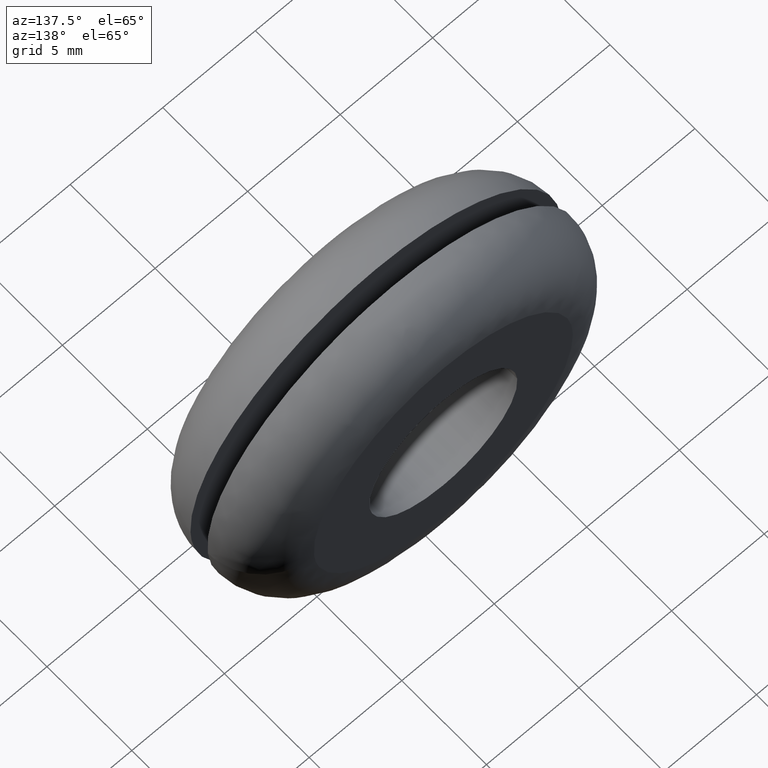
[diagram: clean part render]
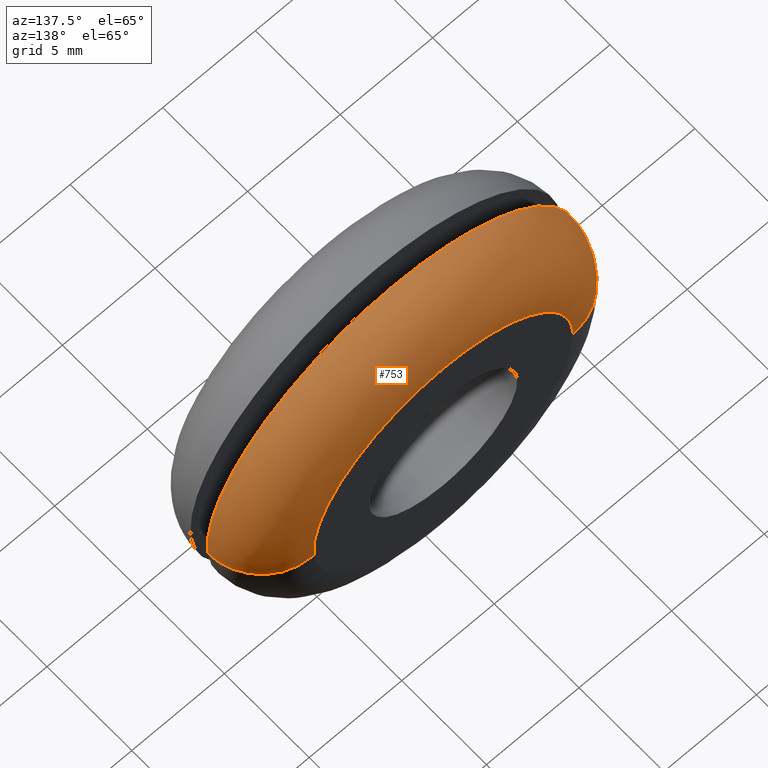
[diagram: same view with one face highlighted and labeled with its STEP entity id]
A machine part, auxiliary view. The second image highlights one B-rep face of the part: STEP entity #753.
In plain terms, the highlighted face is a freeform B-spline surface patch.
Its self-contained STEP definition (entity closure, byte-faithful):
#628=CARTESIAN_POINT('',(6.774856278696406,6.992738098923129,-0.473585243403883));
#629=CARTESIAN_POINT('',(6.788410071817493,6.992738098923129,-0.279691954485990));
#630=CARTESIAN_POINT('',(6.790852488247961,6.992738098923130,-0.085340861364940));
#631=CARTESIAN_POINT('',(6.876193349612899,6.992738098923130,6.705511626883019));
#632=CARTESIAN_POINT('',(0.085340861364941,6.992738098923130,6.790852488247961));
#633=CARTESIAN_POINT('',(-6.705511626883019,6.992738098923130,6.876193349612899));
#634=CARTESIAN_POINT('',(-6.790852488247961,6.992738098923130,0.085340861364941));
#635=CARTESIAN_POINT('',(10.207702002769070,7.232611387236871,-0.713552707055488));
#636=CARTESIAN_POINT('',(10.228123554975616,7.232611387236872,-0.421412943170860));
#637=CARTESIAN_POINT('',(10.231803553201896,7.232611387236871,-0.128583403933191));
#638=CARTESIAN_POINT('',(10.360386957135086,7.232611387236872,10.103220149268701));
#639=CARTESIAN_POINT('',(0.128583403933192,7.232611387236871,10.231803553201896));
#640=CARTESIAN_POINT('',(-10.103220149268701,7.232611387236872,10.360386957135086));
#641=CARTESIAN_POINT('',(-10.231803553201896,7.232611387236871,0.128583403933193));
#642=CARTESIAN_POINT('',(9.968412547829887,3.791388624474089,-0.696825569224137));
#643=CARTESIAN_POINT('',(9.988355377000124,3.791388624474089,-0.411534160125635));
#644=CARTESIAN_POINT('',(9.991949108526068,3.791388624474088,-0.125569145422015));
#645=CARTESIAN_POINT('',(10.117518253948083,3.791388624474089,9.866379963104052));
#646=CARTESIAN_POINT('',(0.125569145422016,3.791388624474088,9.991949108526068));
#647=CARTESIAN_POINT('',(-9.866379963104052,3.791388624474089,10.117518253948083));
#648=CARTESIAN_POINT('',(-9.991949108526068,3.791388624474088,0.125569145422016));
#656=(BOUNDED_SURFACE()B_SPLINE_SURFACE(2,2,((#628,#635,#642),(#629,#636,#643),(#630,#637,#644),(#631,#638,#645),(#632,#639,#646),(#633,#640,#647),(#634,#641,#648)),.UNSPECIFIED.,.F.,.F.,.U.)B_SPLINE_SURFACE_WITH_KNOTS((3,2,2,3),(3,3),(0.0,0.662259791365139,17.218770365012521,33.775280938659911),(0.0,5.467121750697482),.UNSPECIFIED.)GEOMETRIC_REPRESENTATION_ITEM()RATIONAL_B_SPLINE_SURFACE(((0.895729732449210,0.587800221482116,0.895729743804760),(0.905606490046838,0.594281596491894,0.905606501527600),(0.916342095240933,0.601326568744382,0.916342106857795),(0.647951709431553,0.425202094466791,0.647951717645915),(0.916342095240933,0.601326568744382,0.916342106857795),(0.647951709431553,0.425202094466791,0.647951717645915),(0.916342095240933,0.601326568744382,0.916342106857795)))REPRESENTATION_ITEM('')SURFACE());
#657=CARTESIAN_POINT('',(9.975656738315763,4.000000000020544,-0.697332517021288));
#658=VERTEX_POINT('',#657);
#659=CARTESIAN_POINT('',(0.0,4.0,10.0));
#660=VERTEX_POINT('',#659);
#661=CARTESIAN_POINT('',(9.975656738315763,4.000000000020544,-0.697332517021288));
#662=CARTESIAN_POINT('',(10.000000000000002,4.0,-0.349091160018626));
#663=CARTESIAN_POINT('',(10.0,4.0,-1.836910E-016));
#664=CARTESIAN_POINT('',(10.000000000000002,4.000000000000000,10.000000000000002));
#665=CARTESIAN_POINT('',(0.0,4.0,10.0));
#673=(BOUNDED_CURVE()B_SPLINE_CURVE(2,(#661,#662,#663,#664,#665),.UNSPECIFIED.,.F.,.U.)B_SPLINE_CURVE_WITH_KNOTS((3,2,3),(0.237833686491452,0.250000000000000,0.500000000000000),.UNSPECIFIED.)CURVE()GEOMETRIC_REPRESENTATION_ITEM()RATIONAL_B_SPLINE_CURVE((0.972879876294675,0.985746277101551,1.0,0.707106781186548,1.0))REPRESENTATION_ITEM(''));
#674=EDGE_CURVE('',#658,#660,#673,.T.);
#675=ORIENTED_EDGE('',*,*,#674,.F.);
#676=CARTESIAN_POINT('',(6.982959716952744,7.0,-0.488132761038677));
#677=VERTEX_POINT('',#676);
#678=CARTESIAN_POINT('',(6.982959716952744,7.0,-0.488132761038677));
#679=CARTESIAN_POINT('',(9.975656738363334,6.999999999859430,-0.697332515751550));
#680=CARTESIAN_POINT('',(9.975656738315763,4.000000000020544,-0.697332517021288));
#688=(BOUNDED_CURVE()B_SPLINE_CURVE(2,(#678,#679,#680),.UNSPECIFIED.,.F.,.U.)B_SPLINE_CURVE_WITH_KNOTS((3,3),(-1.734750791609713,-0.265249208355830),.UNSPECIFIED.)CURVE()GEOMETRIC_REPRESENTATION_ITEM()RATIONAL_B_SPLINE_CURVE((0.869031711858393,0.614498216544049,0.869031711870330))REPRESENTATION_ITEM(''));
#689=EDGE_CURVE('',#677,#658,#688,.T.);
#690=ORIENTED_EDGE('',*,*,#689,.F.);
#691=CARTESIAN_POINT('',(0.0,7.0,7.0));
#692=VERTEX_POINT('',#691);
#693=CARTESIAN_POINT('',(6.982959716952744,7.0,-0.488132761038677));
#694=CARTESIAN_POINT('',(6.999999999999999,6.999999999999999,-0.244363811128686));
#695=CARTESIAN_POINT('',(7.0,7.0,-1.836910E-016));
#696=CARTESIAN_POINT('',(6.999999999999999,6.999999999999999,6.999999999999999));
#697=CARTESIAN_POINT('',(0.0,7.0,7.0));
#705=(BOUNDED_CURVE()B_SPLINE_CURVE(2,(#693,#694,#695,#696,#697),.UNSPECIFIED.,.F.,.U.)B_SPLINE_CURVE_WITH_KNOTS((3,2,3),(0.237833686534855,0.250000000000000,0.500000000000000),.UNSPECIFIED.)CURVE()GEOMETRIC_REPRESENTATION_ITEM()RATIONAL_B_SPLINE_CURVE((0.972879876386475,0.985746277152400,1.0,0.707106781186547,1.0))REPRESENTATION_ITEM(''));
#706=EDGE_CURVE('',#677,#692,#705,.T.);
#707=ORIENTED_EDGE('',*,*,#706,.T.);
#708=CARTESIAN_POINT('',(-6.999447312662011,7.0,0.087962282790522));
#709=VERTEX_POINT('',#708);
#710=CARTESIAN_POINT('',(0.0,7.0,7.0));
#711=CARTESIAN_POINT('',(-6.912583502307486,6.999999999999999,6.999999999999999));
#712=CARTESIAN_POINT('',(-6.999447312662011,7.000000000000001,0.087962282790522));
#720=(BOUNDED_CURVE()B_SPLINE_CURVE(2,(#710,#711,#712),.UNSPECIFIED.,.F.,.U.)B_SPLINE_CURVE_WITH_KNOTS((3,3),(0.500000000000000,0.747784295742539),.UNSPECIFIED.)CURVE()GEOMETRIC_REPRESENTATION_ITEM()RATIONAL_B_SPLINE_CURVE((1.0,0.709702640194173,0.994854295231589))REPRESENTATION_ITEM(''));
#721=EDGE_CURVE('',#692,#709,#720,.T.);
#722=ORIENTED_EDGE('',*,*,#721,.T.);
#723=CARTESIAN_POINT('',(-9.999210442038091,4.000000000020454,0.125660398838969));
#724=VERTEX_POINT('',#723);
#725=CARTESIAN_POINT('',(-6.999447312662011,7.000000000000001,0.087962282790522));
#726=CARTESIAN_POINT('',(-9.999210441997255,6.999999993439261,0.125660398833005));
#727=CARTESIAN_POINT('',(-9.999210442038091,4.000000000020455,0.125660398838969));
#735=(BOUNDED_CURVE()B_SPLINE_CURVE(2,(#725,#726,#727),.UNSPECIFIED.,.F.,.U.)B_SPLINE_CURVE_WITH_KNOTS((3,3),(-1.734750789385992,-0.265249208355767),.UNSPECIFIED.)CURVE()GEOMETRIC_REPRESENTATION_ITEM()RATIONAL_B_SPLINE_CURVE((0.889029722771115,0.628638946622478,0.889029723571421))REPRESENTATION_ITEM(''));
#736=EDGE_CURVE('',#709,#724,#735,.T.);
#737=ORIENTED_EDGE('',*,*,#736,.T.);
#738=CARTESIAN_POINT('',(0.0,4.0,10.0));
#739=CARTESIAN_POINT('',(-9.875119299062348,4.0,10.0));
#740=CARTESIAN_POINT('',(-9.999210442038091,4.000000000020454,0.125660398838969));
#748=(BOUNDED_CURVE()B_SPLINE_CURVE(2,(#738,#739,#740),.UNSPECIFIED.,.F.,.U.)B_SPLINE_CURVE_WITH_KNOTS((3,3),(0.500000000000000,0.747784295921536),.UNSPECIFIED.)CURVE()GEOMETRIC_REPRESENTATION_ITEM()RATIONAL_B_SPLINE_CURVE((1.0,0.709702639984465,0.994854295643570))REPRESENTATION_ITEM(''));
#749=EDGE_CURVE('',#660,#724,#748,.T.);
#750=ORIENTED_EDGE('',*,*,#749,.F.);
#751=EDGE_LOOP('',(#675,#690,#707,#722,#737,#750));
#752=FACE_OUTER_BOUND('',#751,.T.);
#753=ADVANCED_FACE('',(#752),#656,.T.);